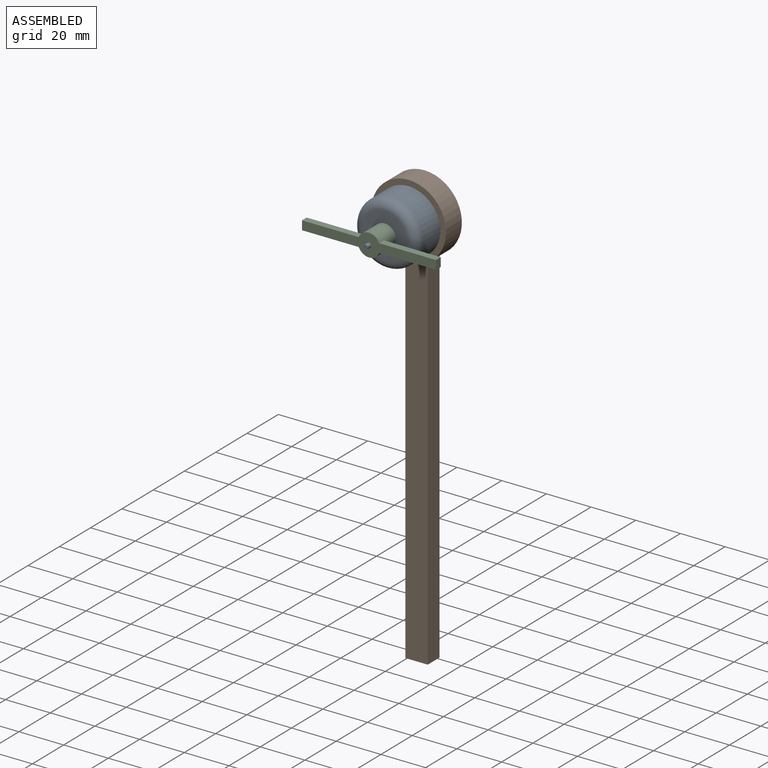
[diagram: assembled view]
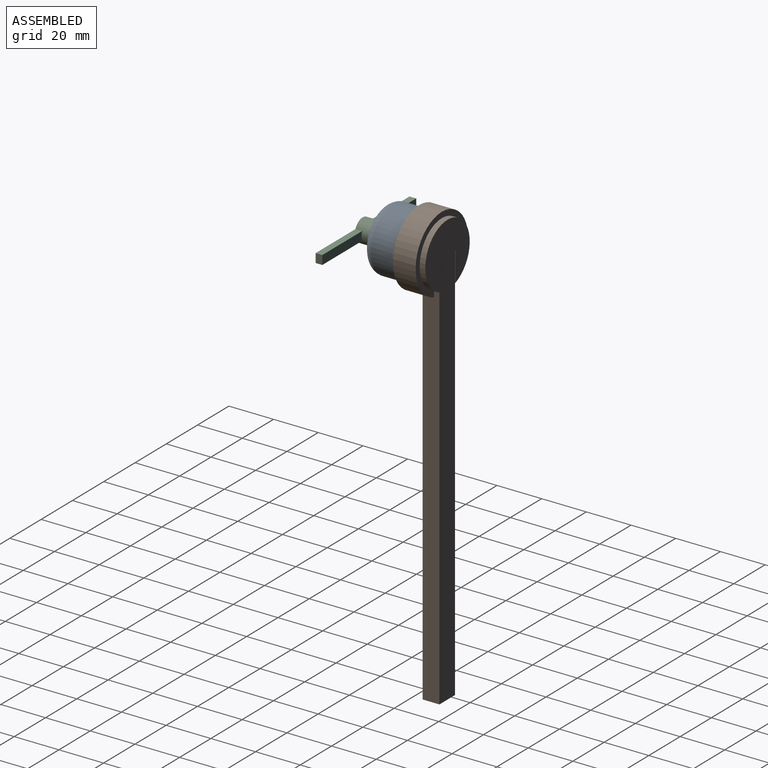
[diagram: assembled view, second angle]
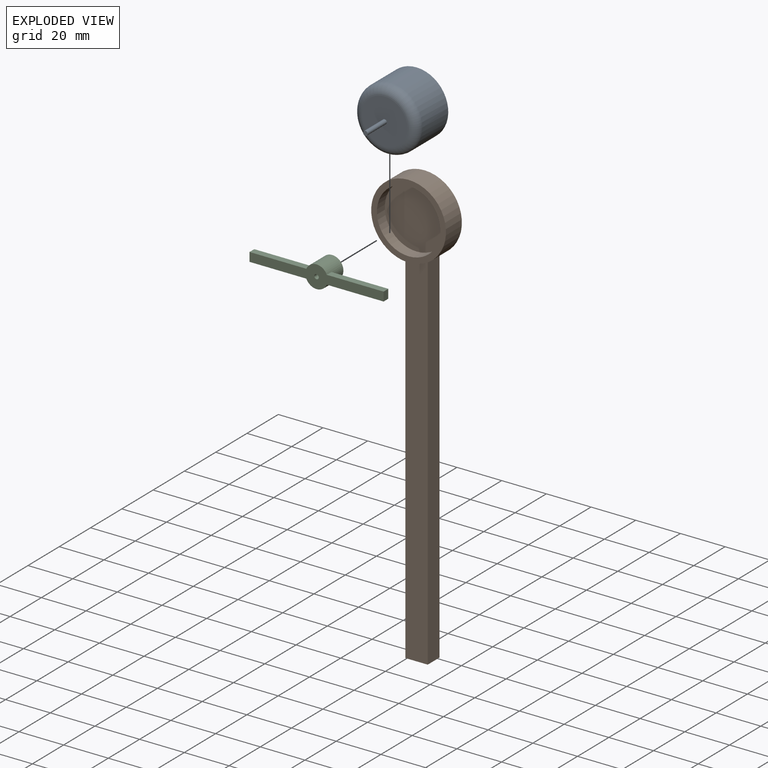
[diagram: exploded view]
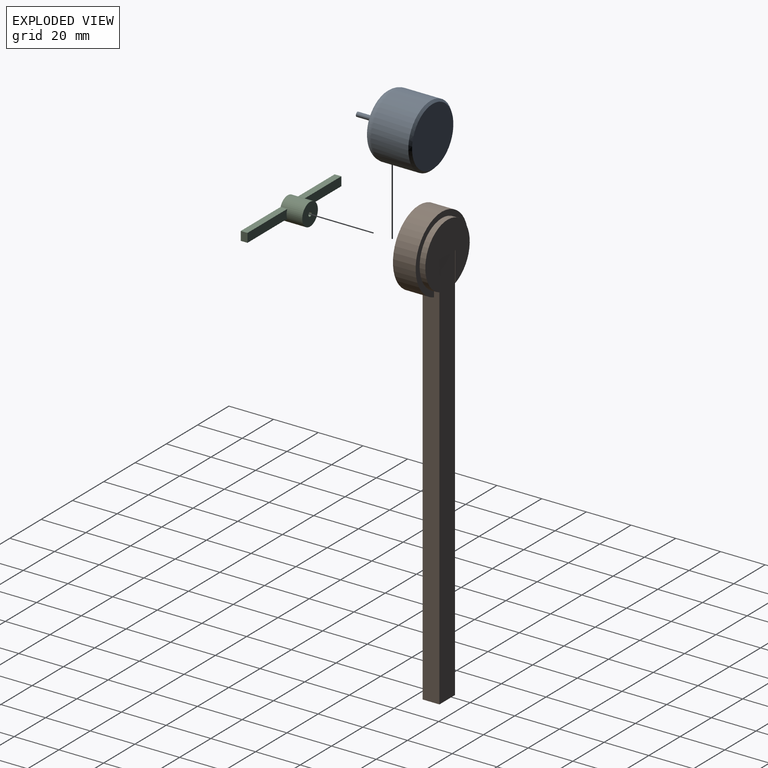
[diagram: exploded view, second angle]
ASSEMBLY  parts=3 mates=3
PART A: 7 faces, bbox 30.7x30.7x33.7 mm
  f0: plane 26.4x26.4mm, normal (0,0,-1), area 547.4mm2, adj f5
  f1: cylinder r=1mm len=12.3mm, axis (0,0,-1), area 77.3mm2, adj f2,f6
  f2: plane 20.4x20.4mm, normal (0,0,1), area 323.7mm2, adj f1,f4
  f3: cylinder r=14.2mm len=28.4mm, axis (0,0,-1), area 1463.2mm2, adj f4,f5
  f4: torus R=10.2mm, axis (0,0,1), area 503.2mm2, adj f2,f3
  f5: cone r=13.2mm half-angle=45deg, axis (0,0,1), area 121.7mm2, adj f0,f3
  f6: plane 2x2mm, normal (0,0,1), area 3.1mm2, adj f1
PART B: 15 faces, bbox 33.5x12.7x196.7 mm
  f0: plane 166.71x7.5mm, normal (-1,0,0), area 1236.7mm2, adj f2,f3,f4,f8,f11,f12
  f1: plane 166.71x7.5mm, normal (1,0,0), area 1236.7mm2, adj f2,f3,f4,f8,f11,f12
  f2: plane 10x7.5mm, normal (0,0,-1), area 75mm2, adj f0,f1,f3,f4
  f3: plane 164.02x10mm, normal (0,-1,0), area 1635.1mm2, adj f0,f1,f2,f11
  f4: plane 180x10mm, normal (0,1,0), area 1800mm2, adj f0,f1,f2,f5,f6,f7
  f5: plane 13.29x0.12mm, normal (1,0,0), area 1.6mm2, adj f4,f7,f8,f9
  f6: plane 13.29x0.12mm, normal (-1,0,0), area 1.6mm2, adj f4,f7,f8,f9
  f7: plane 10x0.12mm, normal (0,0,-1), area 1.2mm2, adj f4,f5,f6,f9
  f8: cylinder r=14.2mm len=28.4mm, axis (0,-1,0), area 200.7mm2, adj f0,f1,f5,f6,f9,f12
  f9: plane 28.4x27.49mm, normal (0,1,0), area 494.5mm2, adj f5,f6,f7,f8
  f10: cylinder r=14.2mm len=28.4mm, axis (0,1,0), area 453.2mm2, adj f13,f14
  f11: cylinder r=16.74mm len=33.48mm, axis (0,1,0), area 1017mm2, adj f0,f1,f3,f12,f13
  f12: plane 33.48x32.72mm, normal (0,1,0), area 221mm2, adj f0,f1,f8,f11
  f13: plane 33.48x33.48mm, normal (0,-1,0), area 246.9mm2, adj f10,f11
  f14: plane 28.4x28.4mm, normal (0,-1,0), area 633.5mm2, adj f10
PART C: 12 faces, bbox 60x10x10 mm
  f0: plane 25.42x4mm, normal (0,1,0), area 100.5mm2, adj f3,f4,f8,f9
  f1: plane 25.42x4mm, normal (0,1,0), area 100.5mm2, adj f5,f6,f7,f8
  f2: plane 60x10mm, normal (0,-1,0), area 276.5mm2, adj f3,f4,f5,f6,f7,f8,f9,f10
  f3: plane 4x3mm, normal (1,0,0), area 12mm2, adj f0,f2,f4,f9
  f4: plane 25.42x3mm, normal (0,0,-1), area 76.3mm2, adj f0,f2,f3,f8
  f5: plane 25.42x3mm, normal (0,0,-1), area 76.3mm2, adj f1,f2,f6,f8
  f6: plane 4x3mm, normal (-1,0,0), area 12mm2, adj f1,f2,f5,f7
  f7: plane 25.42x3mm, normal (0,0,1), area 76.3mm2, adj f1,f2,f6,f8
  f8: cylinder r=5mm len=10mm, axis (0,-1,0), area 289.5mm2, adj f0,f1,f2,f4,f5,f7,f9,f11
  f9: plane 25.42x3mm, normal (0,0,1), area 76.3mm2, adj f0,f2,f3,f8
  f10: cylinder r=1mm len=10mm, axis (0,-1,0), area 62.8mm2, adj f2,f11
  f11: plane 10x10mm, normal (0,1,0), area 75.4mm2, adj f8,f10
PLACE A rot(axis=(1,0,0),90deg) t=(-51.72,-30.91,109.77)mm
PLACE B t=(-51.72,-24.41,19.77)mm
PLACE C t=(-51.72,-62.31,109.77)mm
MATE planar C.f8 <-> A.f1  axis (0,1,0) through (-51.72,-52.31,109.77)mm
MATE cylindrical C.f8 <-> A.f1  axis (0,-1,0) through (-51.72,-52.31,109.77)mm
MATE cylindrical A.f1 <-> B.f8  axis (0,1,0) through (-51.72,-31.91,109.77)mm
